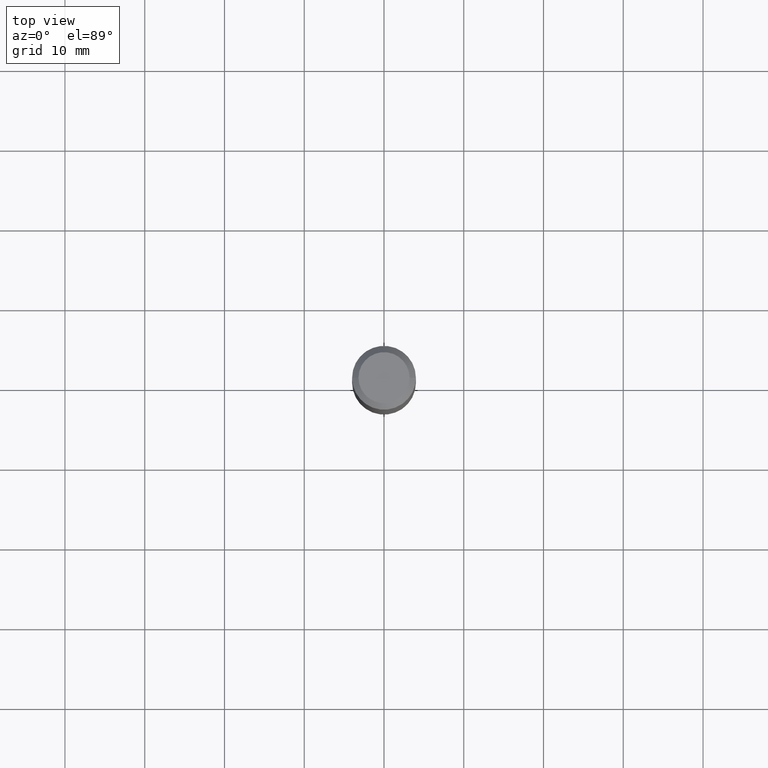
[diagram: clean part render]
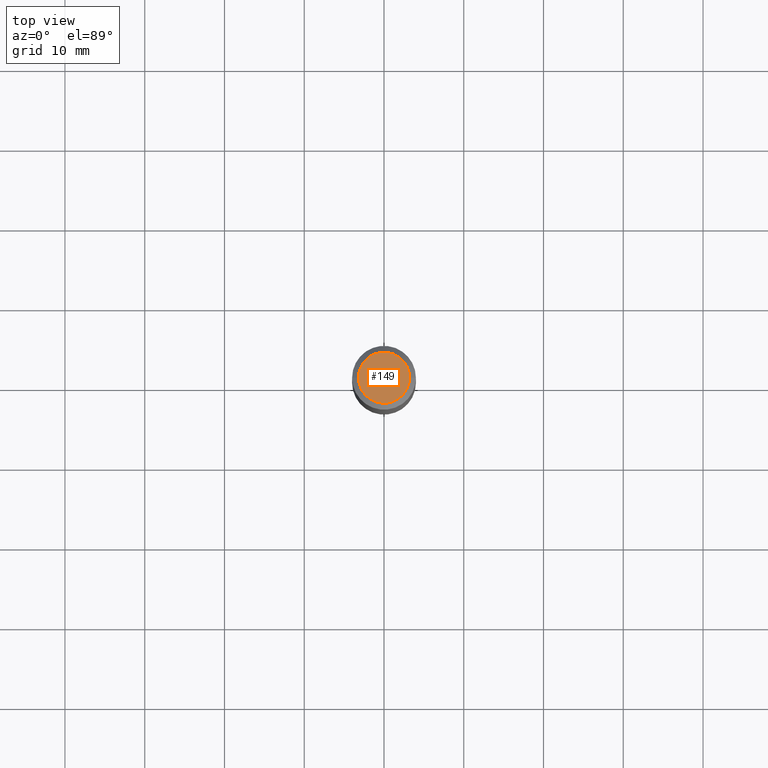
[diagram: same view with one face highlighted and labeled with its STEP entity id]
A machine part, top view. The second image highlights one B-rep face of the part: STEP entity #149.
In plain terms, the highlighted planar face has unit normal (0, -0, -1).
Its self-contained STEP definition (entity closure, byte-faithful):
#23 = CARTESIAN_POINT ( 'NONE',  ( -4.719860820353100843E-47, 6.738710358733633822E-33, 1.930043355456229866E-18 ) ) ;
#32 = FACE_OUTER_BOUND ( 'NONE', #331, .T. ) ;
#53 = VERTEX_POINT ( 'NONE', #325 ) ;
#96 = CIRCLE ( 'NONE', #415, 0.1260000000000000009 ) ;
#101 = DIRECTION ( 'NONE',  ( -1.000000000000000000, 6.982962677686265922E-15, -4.876176775795935793E-29 ) ) ;
#132 = PLANE ( 'NONE',  #225 ) ;
#137 = AXIS2_PLACEMENT_3D ( 'NONE', #172, #360, #252 ) ;
#149 = ADVANCED_FACE ( 'NONE', ( #32 ), #132, .F. ) ;
#172 = CARTESIAN_POINT ( 'NONE',  ( -9.439721640706201686E-47, 1.347742071746726764E-32, 3.860086710912459732E-18 ) ) ;
#212 = CARTESIAN_POINT ( 'NONE',  ( 0.1260000000000000009, -1.027466422270894443E-15, 3.860086710919128072E-18 ) ) ;
#225 = AXIS2_PLACEMENT_3D ( 'NONE', #23, #435, #101 ) ;
#238 = ORIENTED_EDGE ( 'NONE', *, *, #453, .T. ) ;
#252 = DIRECTION ( 'NONE',  ( 1.000000000000000000, -6.982962677686265922E-15, 4.876281427513067258E-29 ) ) ;
#270 = CIRCLE ( 'NONE', #137, 0.1260000000000000009 ) ;
#325 = CARTESIAN_POINT ( 'NONE',  ( -0.1260000000000000009, 9.348441284752484904E-16, 3.860086710906114178E-18 ) ) ;
#331 = EDGE_LOOP ( 'NONE', ( #377, #238 ) ) ;
#360 = DIRECTION ( 'NONE',  ( -2.445468806185136597E-29, 3.491481338843145583E-15, 1.000000000000000000 ) ) ;
#377 = ORIENTED_EDGE ( 'NONE', *, *, #400, .T. ) ;
#381 = DIRECTION ( 'NONE',  ( 1.000000000000000000, -6.982962677686265922E-15, 4.876281427513067258E-29 ) ) ;
#387 = VERTEX_POINT ( 'NONE', #212 ) ;
#400 = EDGE_CURVE ( 'NONE', #53, #387, #270, .T. ) ;
#404 = DIRECTION ( 'NONE',  ( -2.445468806185136597E-29, 3.491481338843145583E-15, 1.000000000000000000 ) ) ;
#415 = AXIS2_PLACEMENT_3D ( 'NONE', #447, #404, #381 ) ;
#435 = DIRECTION ( 'NONE',  ( 2.438088387897960049E-29, -3.491481338843145188E-15, -1.000000000000000000 ) ) ;
#447 = CARTESIAN_POINT ( 'NONE',  ( -9.439721640706201686E-47, 1.347742071746726764E-32, 3.860086710912459732E-18 ) ) ;
#453 = EDGE_CURVE ( 'NONE', #387, #53, #96, .T. ) ;